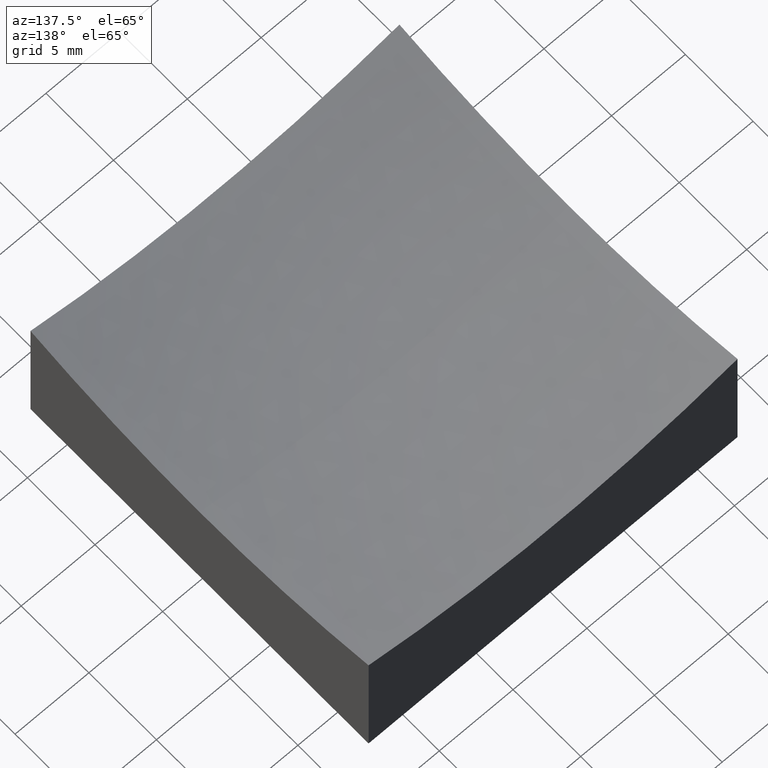
[diagram: clean part render]
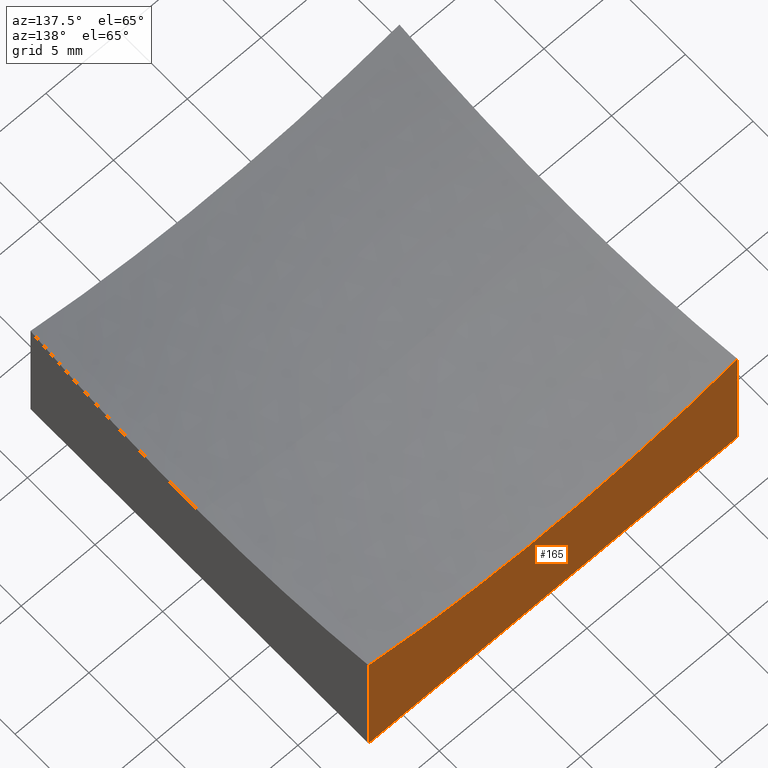
[diagram: same view with one face highlighted and labeled with its STEP entity id]
A machine part, auxiliary view. The second image highlights one B-rep face of the part: STEP entity #165.
In plain terms, the highlighted planar face has unit normal (0, 1, 0).
Its self-contained STEP definition (entity closure, byte-faithful):
#5 = EDGE_CURVE ( 'NONE', #113, #237, #131, .T. ) ;
#20 = DIRECTION ( 'NONE',  ( 0.0000000000000000000, 1.000000000000000000, 0.0000000000000000000 ) ) ;
#27 = EDGE_CURVE ( 'NONE', #169, #113, #225, .T. ) ;
#28 = VECTOR ( 'NONE', #207, 1000.000000000000000 ) ;
#29 = DIRECTION ( 'NONE',  ( -0.0000000000000000000, -0.0000000000000000000, -1.000000000000000000 ) ) ;
#37 = DIRECTION ( 'NONE',  ( 0.0000000000000000000, 1.000000000000000000, 0.0000000000000000000 ) ) ;
#38 = CARTESIAN_POINT ( 'NONE',  ( -12.50000000000000000, 12.50000000000000000, 9.229282665325730051 ) ) ;
#57 = PLANE ( 'NONE',  #202 ) ;
#59 = DIRECTION ( 'NONE',  ( 0.0000000000000000000, -0.0000000000000000000, 1.000000000000000000 ) ) ;
#65 = FACE_OUTER_BOUND ( 'NONE', #88, .T. ) ;
#67 = CARTESIAN_POINT ( 'NONE',  ( 12.50000000000000000, 12.50000000000000000, 0.0000000000000000000 ) ) ;
#76 = ORIENTED_EDGE ( 'NONE', *, *, #27, .F. ) ;
#88 = EDGE_LOOP ( 'NONE', ( #93, #240, #91, #76 ) ) ;
#91 = ORIENTED_EDGE ( 'NONE', *, *, #5, .F. ) ;
#93 = ORIENTED_EDGE ( 'NONE', *, *, #155, .F. ) ;
#102 = DIRECTION ( 'NONE',  ( 0.0000000000000000000, 0.0000000000000000000, 1.000000000000000000 ) ) ;
#113 = VERTEX_POINT ( 'NONE', #157 ) ;
#120 = VECTOR ( 'NONE', #211, 1000.000000000000000 ) ;
#131 = LINE ( 'NONE', #143, #28 ) ;
#134 = CARTESIAN_POINT ( 'NONE',  ( -12.50000000000000000, 12.50000000000000000, 20.00000000000000000 ) ) ;
#136 = VECTOR ( 'NONE', #29, 1000.000000000000000 ) ;
#143 = CARTESIAN_POINT ( 'NONE',  ( -12.50000000000000000, 12.50000000000000000, 0.0000000000000000000 ) ) ;
#148 = CARTESIAN_POINT ( 'NONE',  ( -12.50000000000000000, 12.50000000000000000, 20.00000000000000000 ) ) ;
#155 = EDGE_CURVE ( 'NONE', #182, #169, #173, .T. ) ;
#157 = CARTESIAN_POINT ( 'NONE',  ( -12.50000000000000000, 12.50000000000000000, 0.0000000000000000000 ) ) ;
#163 = CARTESIAN_POINT ( 'NONE',  ( 12.50000000000000000, 12.50000000000000000, 9.229282665325730051 ) ) ;
#165 = ADVANCED_FACE ( 'NONE', ( #65 ), #57, .T. ) ;
#169 = VERTEX_POINT ( 'NONE', #38 ) ;
#173 = CIRCLE ( 'NONE', #185, 48.41229182759270344 ) ;
#182 = VERTEX_POINT ( 'NONE', #163 ) ;
#185 = AXIS2_PLACEMENT_3D ( 'NONE', #198, #20, #102 ) ;
#197 = EDGE_CURVE ( 'NONE', #182, #237, #251, .T. ) ;
#198 = CARTESIAN_POINT ( 'NONE',  ( 6.858022075225178552E-15, 12.50000000000000000, 56.00000000000000000 ) ) ;
#202 = AXIS2_PLACEMENT_3D ( 'NONE', #134, #37, #59 ) ;
#207 = DIRECTION ( 'NONE',  ( 1.000000000000000000, 0.0000000000000000000, 0.0000000000000000000 ) ) ;
#211 = DIRECTION ( 'NONE',  ( -0.0000000000000000000, -0.0000000000000000000, -1.000000000000000000 ) ) ;
#225 = LINE ( 'NONE', #148, #120 ) ;
#234 = CARTESIAN_POINT ( 'NONE',  ( 12.50000000000000000, 12.50000000000000000, 20.00000000000000000 ) ) ;
#237 = VERTEX_POINT ( 'NONE', #67 ) ;
#240 = ORIENTED_EDGE ( 'NONE', *, *, #197, .T. ) ;
#251 = LINE ( 'NONE', #234, #136 ) ;